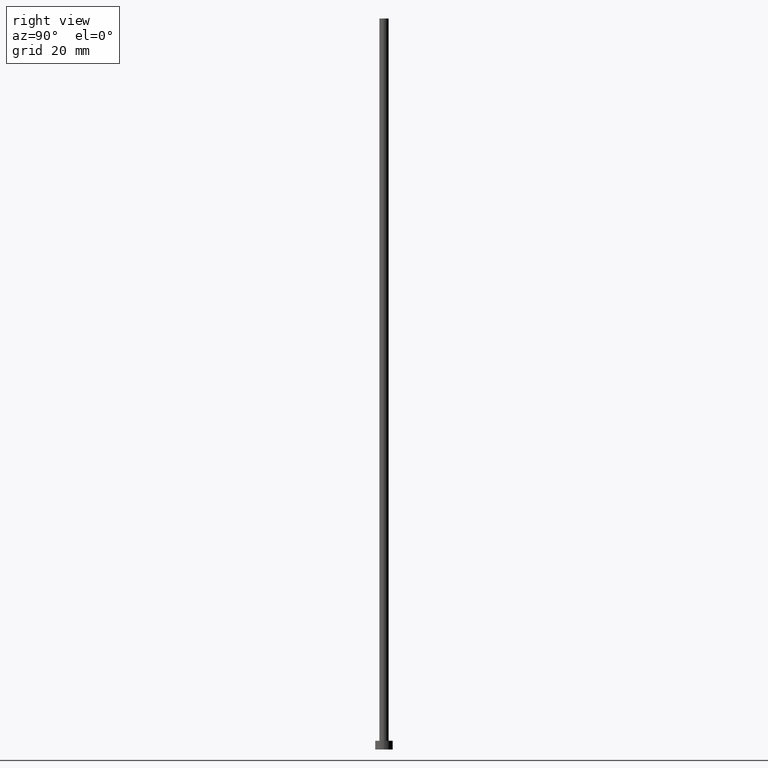
[diagram: clean part render]
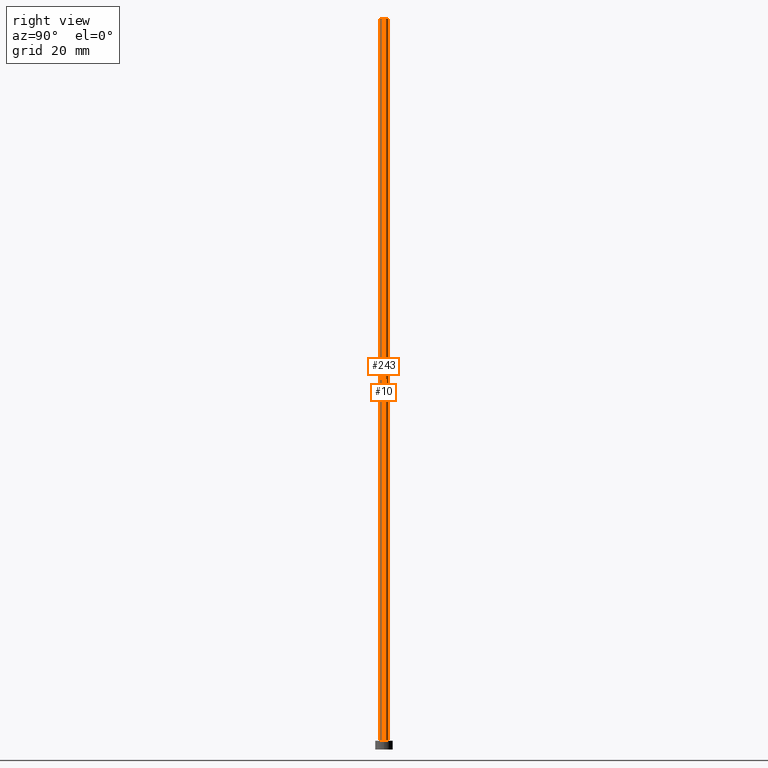
[diagram: same view with one multi-face feature highlighted, each face labeled with its STEP entity id]
A machine part, right view. The highlighted faces form ONE feature: a constant-radius fillet chain: 2 tangent blend faces with common blend radius 0.8 mm. The faces share edges in the B-rep.
Their STEP definitions:
[1] entity #10 (Cylinder):
#5 = VERTEX_POINT ( 'NONE', #80 ) ;
#9 = VERTEX_POINT ( 'NONE', #218 ) ;
#10 = ADVANCED_FACE ( 'NONE', ( #139 ), #20, .T. ) ;
#13 = CARTESIAN_POINT ( 'NONE',  ( 0.000000000000000000, 0.000000000000000000, 1.500000000000000000 ) ) ;
#20 = CYLINDRICAL_SURFACE ( 'NONE', #91, 0.8000000000000000444 ) ;
#32 = ORIENTED_EDGE ( 'NONE', *, *, #117, .F. ) ;
#40 = DIRECTION ( 'NONE',  ( 1.000000000000000000, 0.000000000000000000, 0.000000000000000000 ) ) ;
#58 = ORIENTED_EDGE ( 'NONE', *, *, #132, .T. ) ;
#59 = DIRECTION ( 'NONE',  ( -0.000000000000000000, -0.000000000000000000, -1.000000000000000000 ) ) ;
#64 = ORIENTED_EDGE ( 'NONE', *, *, #68, .F. ) ;
#67 = VERTEX_POINT ( 'NONE', #242 ) ;
#68 = EDGE_CURVE ( 'NONE', #67, #9, #101, .T. ) ;
#78 = CARTESIAN_POINT ( 'NONE',  ( 0.000000000000000000, 0.000000000000000000, 125.0000000000000000 ) ) ;
#80 = CARTESIAN_POINT ( 'NONE',  ( 0.8000000000000000444, 9.797174393178826150E-17, 1.500000000000000000 ) ) ;
#91 = AXIS2_PLACEMENT_3D ( 'NONE', #78, #159, #115 ) ;
#98 = CARTESIAN_POINT ( 'NONE',  ( 0.000000000000000000, 0.000000000000000000, 125.0000000000000000 ) ) ;
#101 = CIRCLE ( 'NONE', #140, 0.8000000000000000444 ) ;
#104 = CARTESIAN_POINT ( 'NONE',  ( 0.8000000000000000444, 9.797174393178826150E-17, 125.0000000000000000 ) ) ;
#105 = EDGE_LOOP ( 'NONE', ( #64, #58, #160, #32 ) ) ;
#113 = VECTOR ( 'NONE', #121, 1000.000000000000000 ) ;
#115 = DIRECTION ( 'NONE',  ( -1.000000000000000000, 0.000000000000000000, 0.000000000000000000 ) ) ;
#117 = EDGE_CURVE ( 'NONE', #9, #234, #179, .T. ) ;
#118 = DIRECTION ( 'NONE',  ( 0.000000000000000000, 0.000000000000000000, 1.000000000000000000 ) ) ;
#119 = CARTESIAN_POINT ( 'NONE',  ( -0.8000000000000000444, 0.000000000000000000, 125.0000000000000000 ) ) ;
#121 = DIRECTION ( 'NONE',  ( -0.000000000000000000, -0.000000000000000000, -1.000000000000000000 ) ) ;
#131 = CIRCLE ( 'NONE', #223, 0.8000000000000000444 ) ;
#132 = EDGE_CURVE ( 'NONE', #67, #5, #255, .T. ) ;
#139 = FACE_OUTER_BOUND ( 'NONE', #105, .T. ) ;
#140 = AXIS2_PLACEMENT_3D ( 'NONE', #98, #118, #196 ) ;
#154 = CARTESIAN_POINT ( 'NONE',  ( -0.8000000000000000444, 0.000000000000000000, 1.500000000000000000 ) ) ;
#159 = DIRECTION ( 'NONE',  ( -0.000000000000000000, -0.000000000000000000, -1.000000000000000000 ) ) ;
#160 = ORIENTED_EDGE ( 'NONE', *, *, #250, .T. ) ;
#179 = LINE ( 'NONE', #119, #199 ) ;
#196 = DIRECTION ( 'NONE',  ( 1.000000000000000000, 0.000000000000000000, 0.000000000000000000 ) ) ;
#199 = VECTOR ( 'NONE', #59, 1000.000000000000000 ) ;
#218 = CARTESIAN_POINT ( 'NONE',  ( -0.8000000000000000444, 0.000000000000000000, 125.0000000000000000 ) ) ;
#220 = DIRECTION ( 'NONE',  ( 0.000000000000000000, 0.000000000000000000, 1.000000000000000000 ) ) ;
#223 = AXIS2_PLACEMENT_3D ( 'NONE', #13, #220, #40 ) ;
#234 = VERTEX_POINT ( 'NONE', #154 ) ;
#242 = CARTESIAN_POINT ( 'NONE',  ( 0.8000000000000000444, 9.797174393178826150E-17, 125.0000000000000000 ) ) ;
#250 = EDGE_CURVE ( 'NONE', #5, #234, #131, .T. ) ;
#255 = LINE ( 'NONE', #104, #113 ) ;
[2] entity #243 (Cylinder):
#5 = VERTEX_POINT ( 'NONE', #80 ) ;
#7 = DIRECTION ( 'NONE',  ( 0.000000000000000000, 0.000000000000000000, 1.000000000000000000 ) ) ;
#9 = VERTEX_POINT ( 'NONE', #218 ) ;
#17 = DIRECTION ( 'NONE',  ( -0.000000000000000000, -0.000000000000000000, -1.000000000000000000 ) ) ;
#31 = CIRCLE ( 'NONE', #92, 0.8000000000000000444 ) ;
#34 = EDGE_LOOP ( 'NONE', ( #73, #138, #209, #74 ) ) ;
#43 = DIRECTION ( 'NONE',  ( 1.000000000000000000, 0.000000000000000000, 0.000000000000000000 ) ) ;
#59 = DIRECTION ( 'NONE',  ( -0.000000000000000000, -0.000000000000000000, -1.000000000000000000 ) ) ;
#67 = VERTEX_POINT ( 'NONE', #242 ) ;
#73 = ORIENTED_EDGE ( 'NONE', *, *, #132, .F. ) ;
#74 = ORIENTED_EDGE ( 'NONE', *, *, #183, .T. ) ;
#77 = FACE_OUTER_BOUND ( 'NONE', #34, .T. ) ;
#80 = CARTESIAN_POINT ( 'NONE',  ( 0.8000000000000000444, 9.797174393178826150E-17, 1.500000000000000000 ) ) ;
#92 = AXIS2_PLACEMENT_3D ( 'NONE', #146, #7, #43 ) ;
#104 = CARTESIAN_POINT ( 'NONE',  ( 0.8000000000000000444, 9.797174393178826150E-17, 125.0000000000000000 ) ) ;
#108 = DIRECTION ( 'NONE',  ( 1.000000000000000000, 0.000000000000000000, 0.000000000000000000 ) ) ;
#113 = VECTOR ( 'NONE', #121, 1000.000000000000000 ) ;
#117 = EDGE_CURVE ( 'NONE', #9, #234, #179, .T. ) ;
#119 = CARTESIAN_POINT ( 'NONE',  ( -0.8000000000000000444, 0.000000000000000000, 125.0000000000000000 ) ) ;
#121 = DIRECTION ( 'NONE',  ( -0.000000000000000000, -0.000000000000000000, -1.000000000000000000 ) ) ;
#132 = EDGE_CURVE ( 'NONE', #67, #5, #255, .T. ) ;
#134 = DIRECTION ( 'NONE',  ( 0.000000000000000000, 0.000000000000000000, 1.000000000000000000 ) ) ;
#138 = ORIENTED_EDGE ( 'NONE', *, *, #203, .F. ) ;
#144 = DIRECTION ( 'NONE',  ( -1.000000000000000000, 0.000000000000000000, 0.000000000000000000 ) ) ;
#146 = CARTESIAN_POINT ( 'NONE',  ( 0.000000000000000000, 0.000000000000000000, 1.500000000000000000 ) ) ;
#154 = CARTESIAN_POINT ( 'NONE',  ( -0.8000000000000000444, 0.000000000000000000, 1.500000000000000000 ) ) ;
#176 = CARTESIAN_POINT ( 'NONE',  ( 0.000000000000000000, 0.000000000000000000, 125.0000000000000000 ) ) ;
#179 = LINE ( 'NONE', #119, #199 ) ;
#180 = CIRCLE ( 'NONE', #210, 0.8000000000000000444 ) ;
#183 = EDGE_CURVE ( 'NONE', #234, #5, #31, .T. ) ;
#194 = CYLINDRICAL_SURFACE ( 'NONE', #246, 0.8000000000000000444 ) ;
#199 = VECTOR ( 'NONE', #59, 1000.000000000000000 ) ;
#202 = CARTESIAN_POINT ( 'NONE',  ( 0.000000000000000000, 0.000000000000000000, 125.0000000000000000 ) ) ;
#203 = EDGE_CURVE ( 'NONE', #9, #67, #180, .T. ) ;
#209 = ORIENTED_EDGE ( 'NONE', *, *, #117, .T. ) ;
#210 = AXIS2_PLACEMENT_3D ( 'NONE', #202, #134, #108 ) ;
#218 = CARTESIAN_POINT ( 'NONE',  ( -0.8000000000000000444, 0.000000000000000000, 125.0000000000000000 ) ) ;
#234 = VERTEX_POINT ( 'NONE', #154 ) ;
#242 = CARTESIAN_POINT ( 'NONE',  ( 0.8000000000000000444, 9.797174393178826150E-17, 125.0000000000000000 ) ) ;
#243 = ADVANCED_FACE ( 'NONE', ( #77 ), #194, .T. ) ;
#246 = AXIS2_PLACEMENT_3D ( 'NONE', #176, #17, #144 ) ;
#255 = LINE ( 'NONE', #104, #113 ) ;